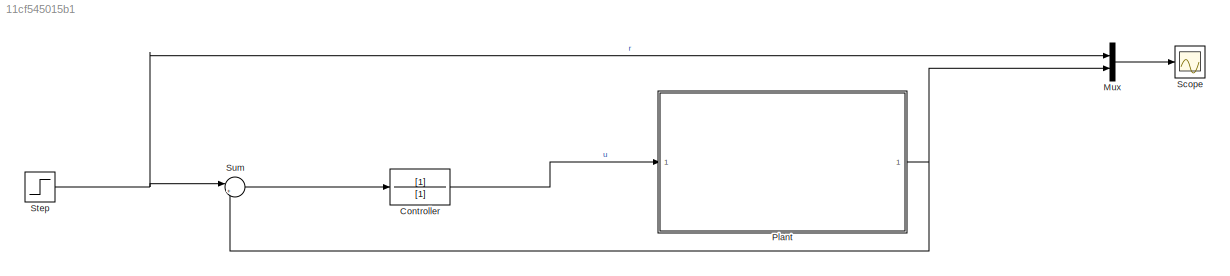
MODEL slx_11cf545015b1
KIND model
CONFIG AbsTol = auto
CONFIG EnableMultiTasking = off
CONFIG FixedStep = auto
CONFIG MaxStep = auto
CONFIG MinStep = auto
CONFIG RelTol = 1e-3
CONFIG SampleTimeConstraint = Unconstrained
CONFIG Solver = VariableStepAuto
CONFIG SolverName = VariableStepAuto
CONFIG StartTime = 0.0
CONFIG StopTime = 10.0
BLOCK [TransferFcn]  Controller
  Denominator = [1]
BLOCK [Mux] Mux
  DisplayOption = bar
  Inputs = 2
  Ports = [2, 1]
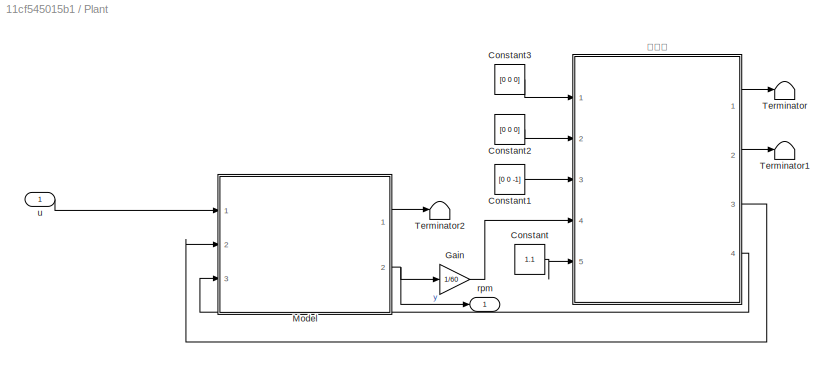
BLOCK [SubSystem] Plant
  Ports = [1, 1]
  RequestExecContextInheritance = off
BLOCK [Constant] Plant/Constant
  SampleTime = 0.02
  Value = 1.1
BLOCK [Constant] Plant/Constant1
  SampleTime = 0.02
  Value = [0 0 -1]
BLOCK [Constant] Plant/Constant2
  SampleTime = 0.02
  Value = [0 0 0]
BLOCK [Constant] Plant/Constant3
  SampleTime = 0.02
  Value = [0 0 0]
BLOCK [Gain] Plant/Gain
  Gain = 1/60
  OutDataTypeStr = Inherit: Inherit via internal rule
  ParamDataTypeStr = Inherit: Inherit via internal rule
  SaturateOnIntegerOverflow = off
BLOCK [ModelReference] Plant/Model
  ModelNameDialog = PFKV2300.slx
  ModelReferenceVersion = 1.16
  Ports = [3, 2]
BLOCK [Terminator] Plant/Terminator
BLOCK [Terminator] Plant/Terminator1
BLOCK [Terminator] Plant/Terminator2
BLOCK [Outport] Plant/rpm
  IconDisplay = Port number
BLOCK [Inport] Plant/u
  IconDisplay = Port number
BLOCK [ModelReference] Plant/螺旋桨
  ModelNameDialog = PF70mmDuctFanP.slx
  ModelReferenceVersion = 1.37
  Ports = [5, 4]
BLOCK [Scope] Scope
  Floating = off
  NumInputPorts = 1
  Ports = [1]
  ScopeSpecificationString = Simulink.scopes.TimeScopeBlockCfg('CurrentConfiguration', extmgr.ConfigurationSet(extmgr.Configuration('Core','General UI',true),extmgr.Configuration('Core','Source UI',true),extmgr.Configuration('Sources','WiredSimulink',true),extmgr.Configuration('Visuals','Time Domain',true),extmgr.Configuration('Tools','Plot Navigation',true),extmgr.Configuration('Tools','Measurements',true)),'Version','2018b'...<+1ch>
BLOCK [Step] Step
  After = 5000
  SampleTime = 0
BLOCK [Sum] Sum
  IconShape = round
  InputSameDT = off
  Inputs = |+-
  OutDataTypeStr = Inherit: Inherit via internal rule
  Ports = [2, 1]
  SaturateOnIntegerOverflow = off
LINE  Controller:1 -> Plant:1
LINE Mux:1 -> Scope:1
LINE Plant/Constant1:1 -> Plant/螺旋桨:3
LINE Plant/Constant2:1 -> Plant/螺旋桨:2
LINE Plant/Constant3:1 -> Plant/螺旋桨:1
LINE Plant/Constant:1 -> Plant/螺旋桨:5
LINE Plant/Gain:1 -> Plant/螺旋桨:4
LINE Plant/Model:1 -> Plant/Terminator2:1
NET Plant/Model:2 -> Plant/Gain:1, Plant/rpm:1
LINE Plant/u:1 -> Plant/Model:1
LINE Plant/螺旋桨:1 -> Plant/Terminator:1
LINE Plant/螺旋桨:2 -> Plant/Terminator1:1
LINE Plant/螺旋桨:3 -> Plant/Model:2
LINE Plant/螺旋桨:4 -> Plant/Model:3
NET Plant:1 -> Mux:2, Sum:2
NET Step:1 -> Mux:1, Sum:1
LINE Sum:1 ->  Controller:1
note: NET lines group one-source signal fan-out (src -> all destinations, sorted); 1:1 wires keep LINE
